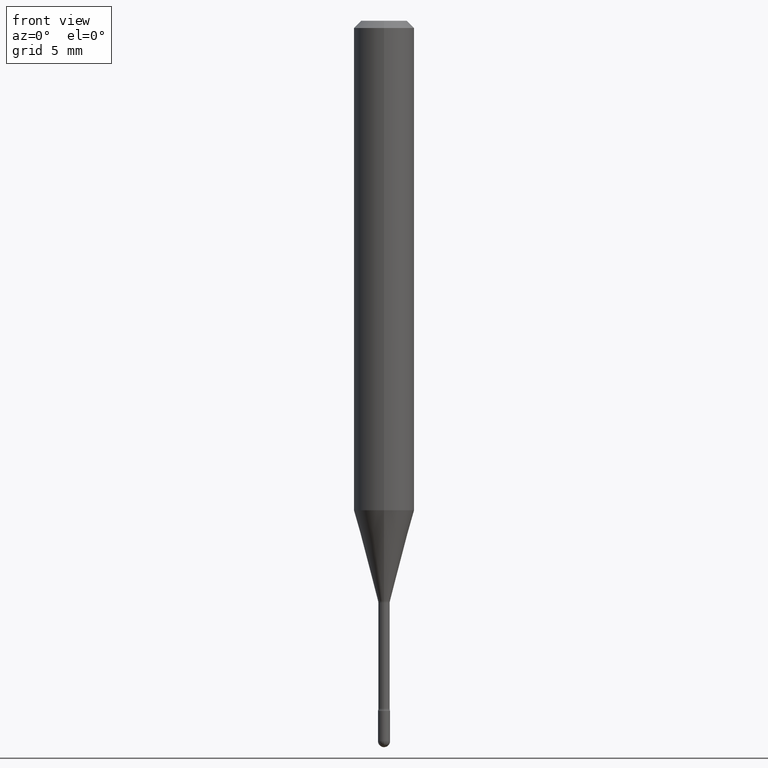
[diagram: clean part render]
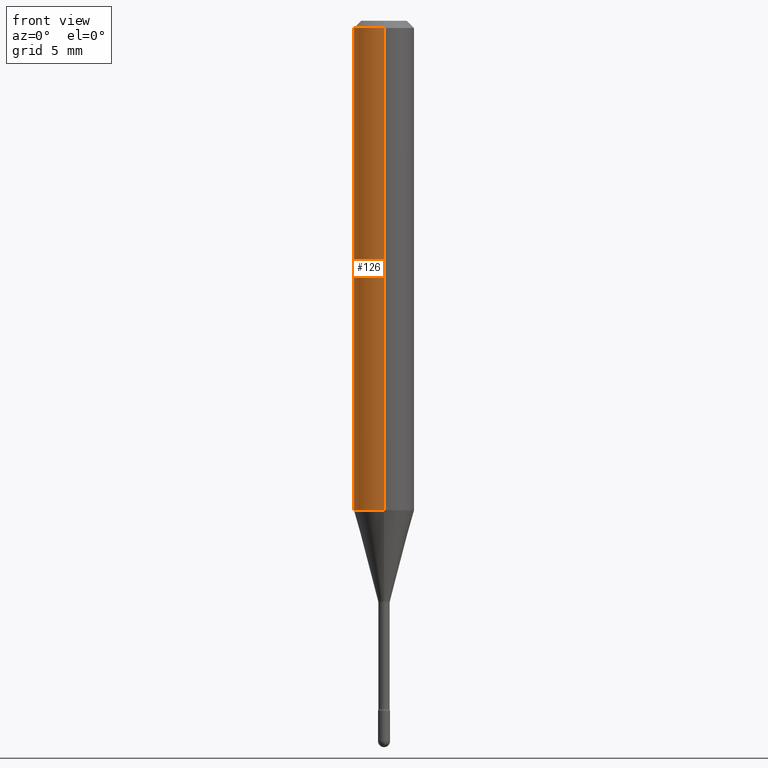
[diagram: same view with one face highlighted and labeled with its STEP entity id]
A machine part, front view. The second image highlights one B-rep face of the part: STEP entity #126.
In plain terms, the highlighted cylindrical surface (edge-blend (fillet) strip) has radius 1.5875 mm, axis along (-0, 0, 1).
Its self-contained STEP definition (entity closure, byte-faithful):
#20 = DIRECTION ( 'NONE',  ( -2.445512229756394433E-29, 3.491419153817588613E-15, 1.000000000000000000 ) ) ;
#21 = VERTEX_POINT ( 'NONE', #137 ) ;
#45 = DIRECTION ( 'NONE',  ( -2.445512229756394153E-29, 3.491419153817588613E-15, 1.000000000000000000 ) ) ;
#49 = DIRECTION ( 'NONE',  ( -6.982962677686265922E-15, -1.000000000000000000, 3.491419153817587824E-15 ) ) ;
#50 = EDGE_CURVE ( 'NONE', #509, #489, #130, .T. ) ;
#51 = CARTESIAN_POINT ( 'NONE',  ( 4.440892098500871695E-16, 0.06249999999999647504, -1.010598421515880085 ) ) ;
#54 = CIRCLE ( 'NONE', #300, 0.06250000000000000000 ) ;
#70 = ORIENTED_EDGE ( 'NONE', *, *, #262, .F. ) ;
#80 = EDGE_CURVE ( 'NONE', #21, #489, #564, .T. ) ;
#81 = ORIENTED_EDGE ( 'NONE', *, *, #80, .T. ) ;
#108 = ORIENTED_EDGE ( 'NONE', *, *, #50, .F. ) ;
#126 = ADVANCED_FACE ( 'NONE', ( #314 ), #276, .T. ) ;
#130 = CIRCLE ( 'NONE', #325, 0.06250000000000000000 ) ;
#137 = CARTESIAN_POINT ( 'NONE',  ( -4.364351673553669682E-16, -0.06250000000000353884, -1.010598421515879641 ) ) ;
#145 = DIRECTION ( 'NONE',  ( -6.982962677686265922E-15, -1.000000000000000000, 4.370956789862821150E-15 ) ) ;
#152 = VECTOR ( 'NONE', #20, 39.37007874015748143 ) ;
#157 = CARTESIAN_POINT ( 'NONE',  ( 3.668268344634611408E-31, -5.237128730726412034E-17, -0.01500000000000008271 ) ) ;
#164 = VERTEX_POINT ( 'NONE', #51 ) ;
#180 = DIRECTION ( 'NONE',  ( -2.445512229756394433E-29, 3.491419153817588613E-15, 1.000000000000000000 ) ) ;
#231 = EDGE_CURVE ( 'NONE', #164, #21, #54, .T. ) ;
#262 = EDGE_CURVE ( 'NONE', #164, #509, #287, .T. ) ;
#276 = CYLINDRICAL_SURFACE ( 'NONE', #293, 0.06250000000000000000 ) ;
#287 = LINE ( 'NONE', #496, #152 ) ;
#293 = AXIS2_PLACEMENT_3D ( 'NONE', #436, #307, #49 ) ;
#300 = AXIS2_PLACEMENT_3D ( 'NONE', #363, #540, #145 ) ;
#307 = DIRECTION ( 'NONE',  ( -2.445512229756394153E-29, 3.491419153817588613E-15, 1.000000000000000000 ) ) ;
#310 = ORIENTED_EDGE ( 'NONE', *, *, #231, .T. ) ;
#314 = FACE_OUTER_BOUND ( 'NONE', #501, .T. ) ;
#325 = AXIS2_PLACEMENT_3D ( 'NONE', #157, #45, #394 ) ;
#363 = CARTESIAN_POINT ( 'NONE',  ( 2.471430799189591968E-29, -3.528422685698364125E-15, -1.010598421515879863 ) ) ;
#379 = CARTESIAN_POINT ( 'NONE',  ( 4.440892098500874653E-16, 0.06249999999999993755, -0.01500000000000030129 ) ) ;
#394 = DIRECTION ( 'NONE',  ( -6.982962677686265922E-15, -1.000000000000000000, 3.483106191921935554E-15 ) ) ;
#429 = CARTESIAN_POINT ( 'NONE',  ( -4.364351673553916201E-16, -0.06250000000000000000, 6.962870960048452529E-16 ) ) ;
#436 = CARTESIAN_POINT ( 'NONE',  ( -1.169113584055446105E-44, 1.669184350826100908E-30, 4.780733988912460139E-16 ) ) ;
#472 = VECTOR ( 'NONE', #180, 39.37007874015748143 ) ;
#489 = VERTEX_POINT ( 'NONE', #560 ) ;
#496 = CARTESIAN_POINT ( 'NONE',  ( 4.440892098500625669E-16, 0.06250000000000000000, 2.598597017776467749E-16 ) ) ;
#501 = EDGE_LOOP ( 'NONE', ( #70, #310, #81, #108 ) ) ;
#509 = VERTEX_POINT ( 'NONE', #379 ) ;
#540 = DIRECTION ( 'NONE',  ( -2.445512229756394153E-29, 3.491419153817588613E-15, 1.000000000000000000 ) ) ;
#560 = CARTESIAN_POINT ( 'NONE',  ( -4.364351673553912750E-16, -0.06250000000000005551, -0.01499999999999986587 ) ) ;
#564 = LINE ( 'NONE', #429, #472 ) ;